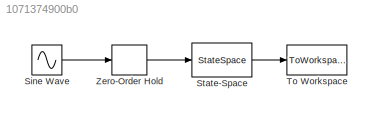
MODEL slx_1071374900b0
KIND model
BLOCK [Sin] Sine Wave
  Ports = [0, 1]
  SampleTime = 0
BLOCK [StateSpace] State-Space
  A = A
  B = B
  C = C
  D = D
BLOCK [ToWorkspace] To Workspace
  MaxDataPoints = inf
  Ports = [1]
  SampleTime = -1
  VariableName = cdy
BLOCK [ZeroOrderHold] Zero-Order Hold
  SampleTime = cdst
LINE Sine Wave:1 -> Zero-Order Hold:1
LINE State-Space:1 -> To Workspace:1
LINE Zero-Order Hold:1 -> State-Space:1
